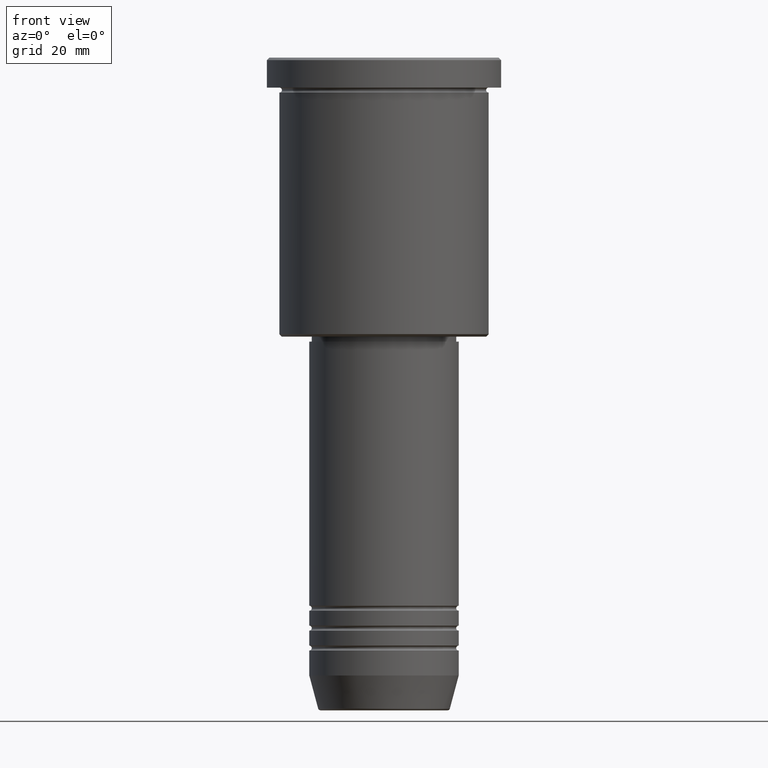
[diagram: clean part render]
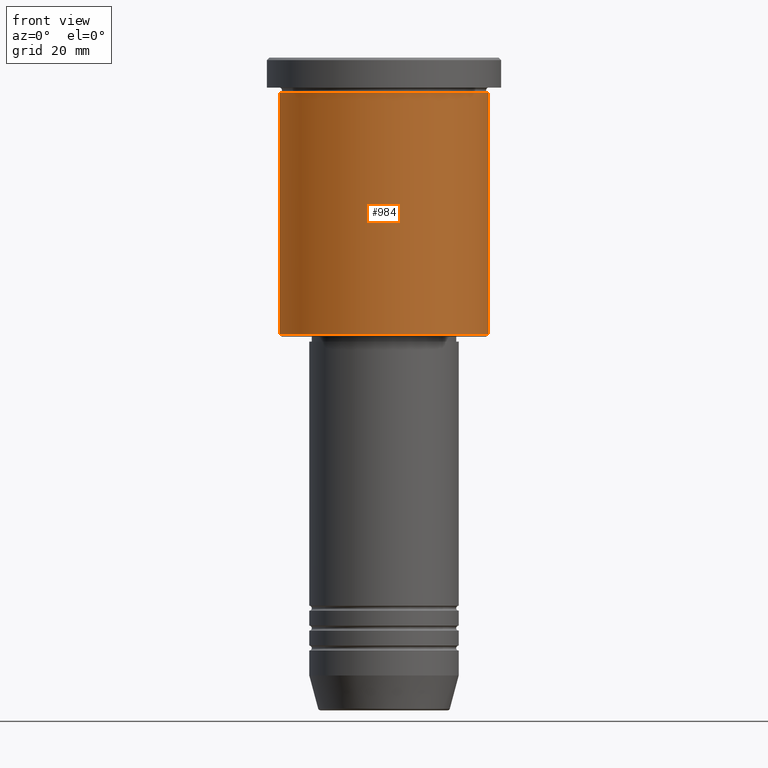
[diagram: same view with one face highlighted and labeled with its STEP entity id]
A machine part, front view. The second image highlights one B-rep face of the part: STEP entity #984.
In plain terms, the highlighted cylindrical surface (partial cylindrical patch) has radius 21 mm, axis along (-0, -0, 1).
Its self-contained STEP definition (entity closure, byte-faithful):
#22 = DIRECTION ( 'NONE',  ( -0.000000000000000000, -0.000000000000000000, 1.000000000000000000 ) ) ;
#46 = VERTEX_POINT ( 'NONE', #66 ) ;
#54 = EDGE_CURVE ( 'NONE', #46, #817, #354, .T. ) ;
#62 = EDGE_CURVE ( 'NONE', #46, #134, #834, .T. ) ;
#66 = CARTESIAN_POINT ( 'NONE',  ( -21.00000000000000000, 2.571758278209441661E-15, -55.49999999999997868 ) ) ;
#96 = DIRECTION ( 'NONE',  ( -0.000000000000000000, -0.000000000000000000, 1.000000000000000000 ) ) ;
#104 = CYLINDRICAL_SURFACE ( 'NONE', #774, 21.00000000000000000 ) ;
#121 = DIRECTION ( 'NONE',  ( 1.000000000000000000, 0.000000000000000000, 0.000000000000000000 ) ) ;
#133 = LINE ( 'NONE', #952, #1142 ) ;
#134 = VERTEX_POINT ( 'NONE', #303 ) ;
#243 = VECTOR ( 'NONE', #96, 1000.000000000000000 ) ;
#252 = EDGE_LOOP ( 'NONE', ( #965, #715, #473, #1171 ) ) ;
#274 = DIRECTION ( 'NONE',  ( -0.000000000000000000, -0.000000000000000000, 1.000000000000000000 ) ) ;
#298 = DIRECTION ( 'NONE',  ( -1.000000000000000000, 0.000000000000000000, 0.000000000000000000 ) ) ;
#303 = CARTESIAN_POINT ( 'NONE',  ( -21.00000000000000000, 2.571758278209441661E-15, -6.999999999999993783 ) ) ;
#354 = CIRCLE ( 'NONE', #674, 21.00000000000000000 ) ;
#366 = DIRECTION ( 'NONE',  ( 1.000000000000000000, 0.000000000000000000, 0.000000000000000000 ) ) ;
#388 = VERTEX_POINT ( 'NONE', #697 ) ;
#428 = CARTESIAN_POINT ( 'NONE',  ( 0.000000000000000000, 0.000000000000000000, -55.49999999999997868 ) ) ;
#442 = EDGE_CURVE ( 'NONE', #817, #388, #133, .T. ) ;
#473 = ORIENTED_EDGE ( 'NONE', *, *, #442, .T. ) ;
#536 = FACE_OUTER_BOUND ( 'NONE', #252, .T. ) ;
#572 = CARTESIAN_POINT ( 'NONE',  ( 21.00000000000000000, 0.000000000000000000, -55.49999999999997868 ) ) ;
#593 = DIRECTION ( 'NONE',  ( -0.000000000000000000, -0.000000000000000000, 1.000000000000000000 ) ) ;
#607 = AXIS2_PLACEMENT_3D ( 'NONE', #920, #658, #121 ) ;
#657 = CARTESIAN_POINT ( 'NONE',  ( -21.00000000000000000, 2.571758278209441661E-15, 0.000000000000000000 ) ) ;
#658 = DIRECTION ( 'NONE',  ( -0.000000000000000000, -0.000000000000000000, 1.000000000000000000 ) ) ;
#674 = AXIS2_PLACEMENT_3D ( 'NONE', #428, #22, #298 ) ;
#697 = CARTESIAN_POINT ( 'NONE',  ( 21.00000000000000000, 0.000000000000000000, -6.999999999999993783 ) ) ;
#715 = ORIENTED_EDGE ( 'NONE', *, *, #54, .T. ) ;
#774 = AXIS2_PLACEMENT_3D ( 'NONE', #1169, #274, #366 ) ;
#817 = VERTEX_POINT ( 'NONE', #572 ) ;
#834 = LINE ( 'NONE', #657, #243 ) ;
#920 = CARTESIAN_POINT ( 'NONE',  ( 0.000000000000000000, 0.000000000000000000, -6.999999999999993783 ) ) ;
#952 = CARTESIAN_POINT ( 'NONE',  ( 21.00000000000000000, 0.000000000000000000, 0.000000000000000000 ) ) ;
#965 = ORIENTED_EDGE ( 'NONE', *, *, #62, .F. ) ;
#984 = ADVANCED_FACE ( 'NONE', ( #536 ), #104, .T. ) ;
#1126 = CIRCLE ( 'NONE', #607, 21.00000000000000000 ) ;
#1142 = VECTOR ( 'NONE', #593, 1000.000000000000000 ) ;
#1156 = EDGE_CURVE ( 'NONE', #134, #388, #1126, .T. ) ;
#1169 = CARTESIAN_POINT ( 'NONE',  ( 0.000000000000000000, 0.000000000000000000, 0.000000000000000000 ) ) ;
#1171 = ORIENTED_EDGE ( 'NONE', *, *, #1156, .F. ) ;